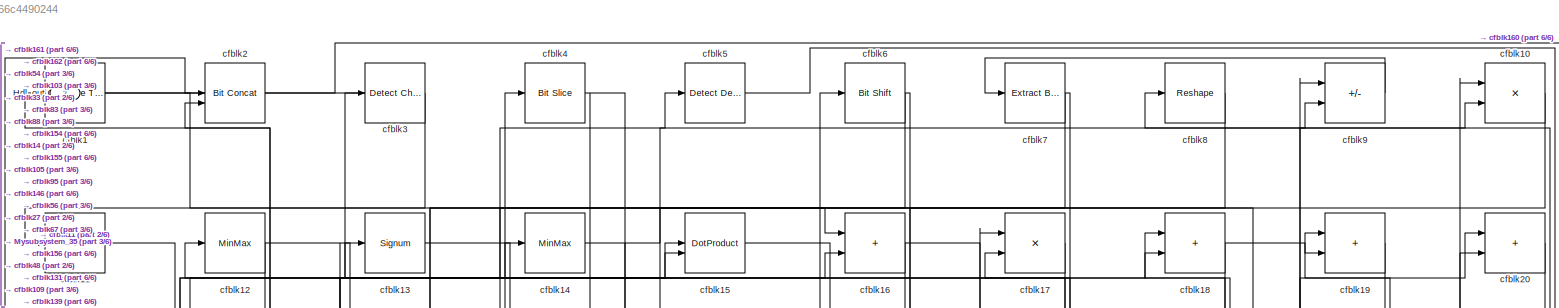
[diagram: root canvas - part 1/6, full width, top band]
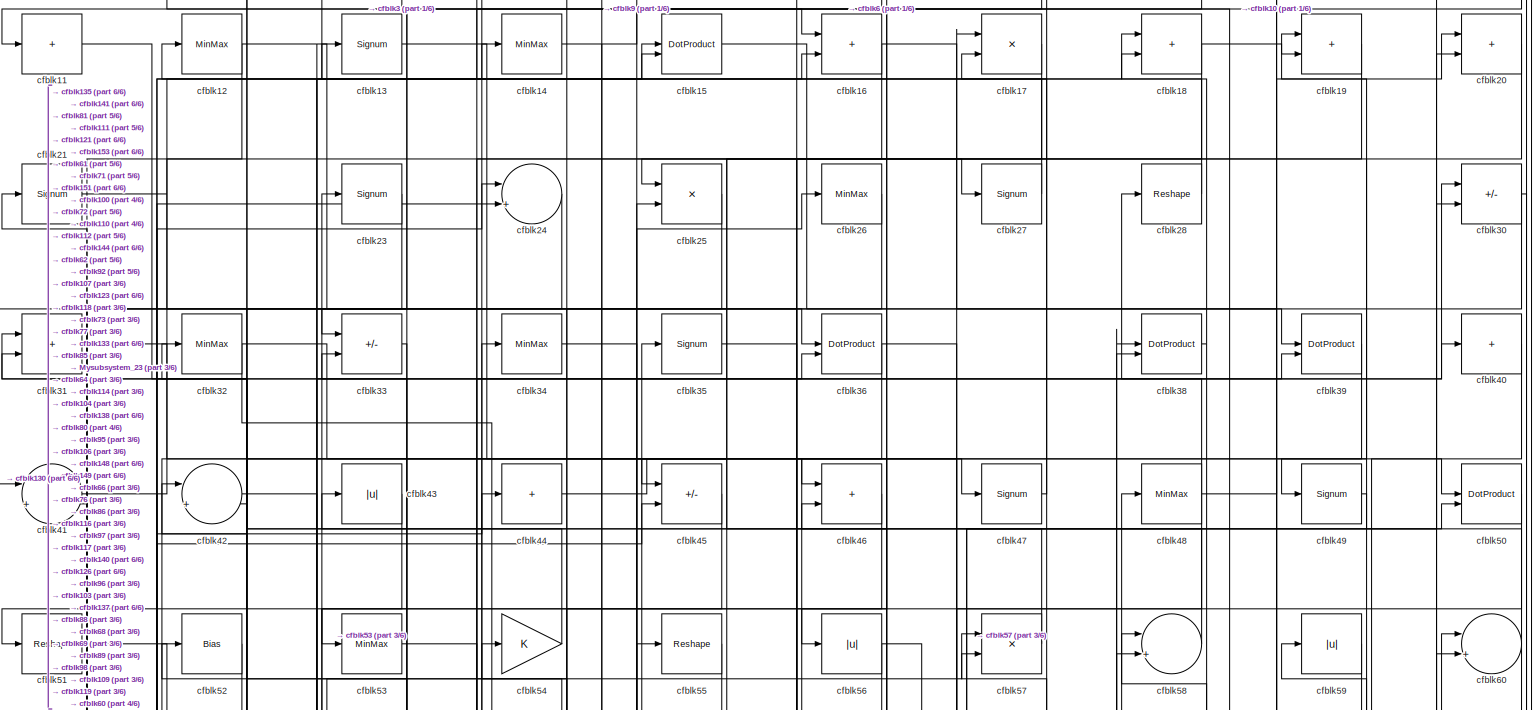
[diagram: root canvas - part 2/6, full width, top band]
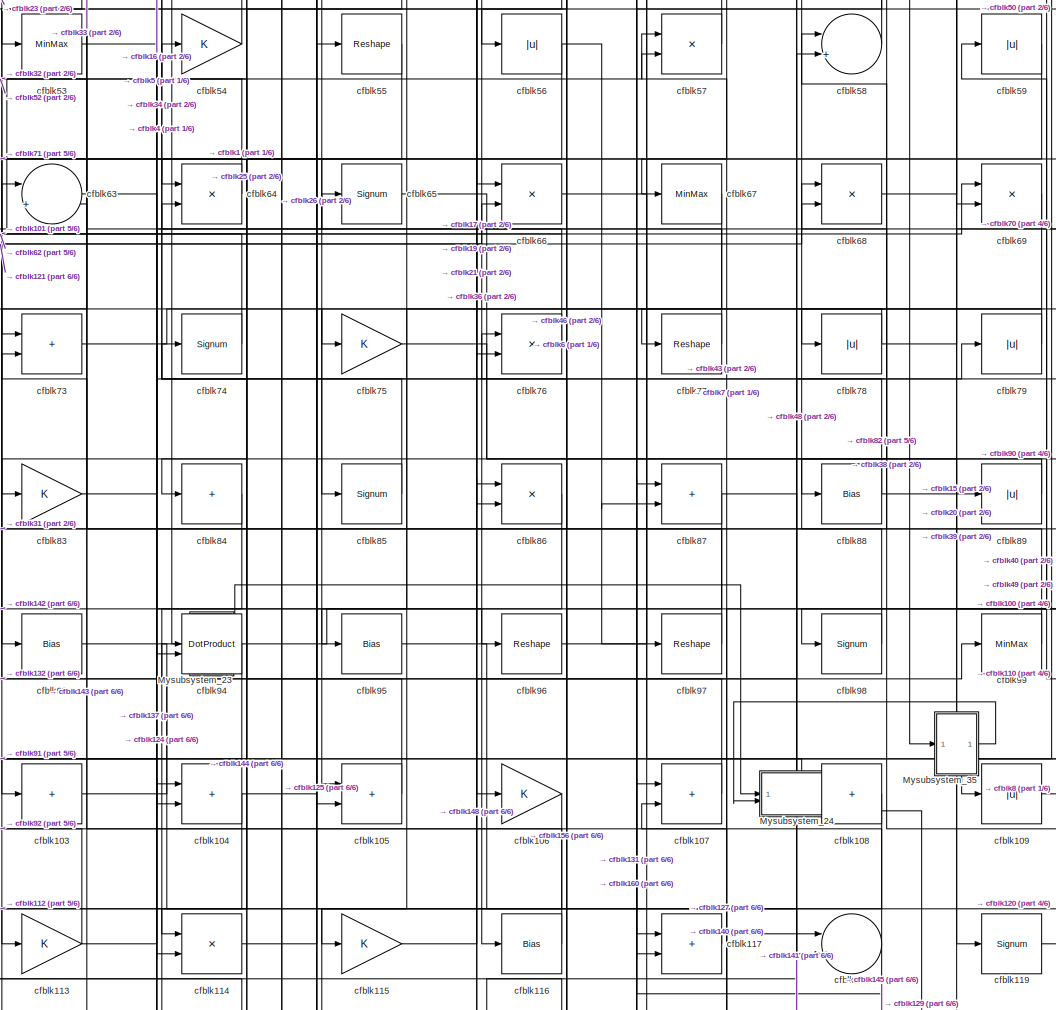
[diagram: root canvas - part 3/6, central region]
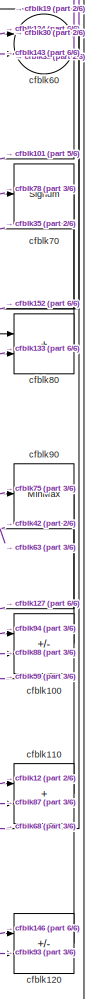
[diagram: root canvas - part 4/6, middle right region]
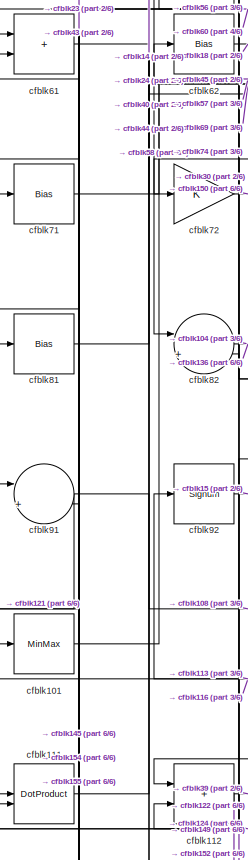
[diagram: root canvas - part 5/6, middle left region]
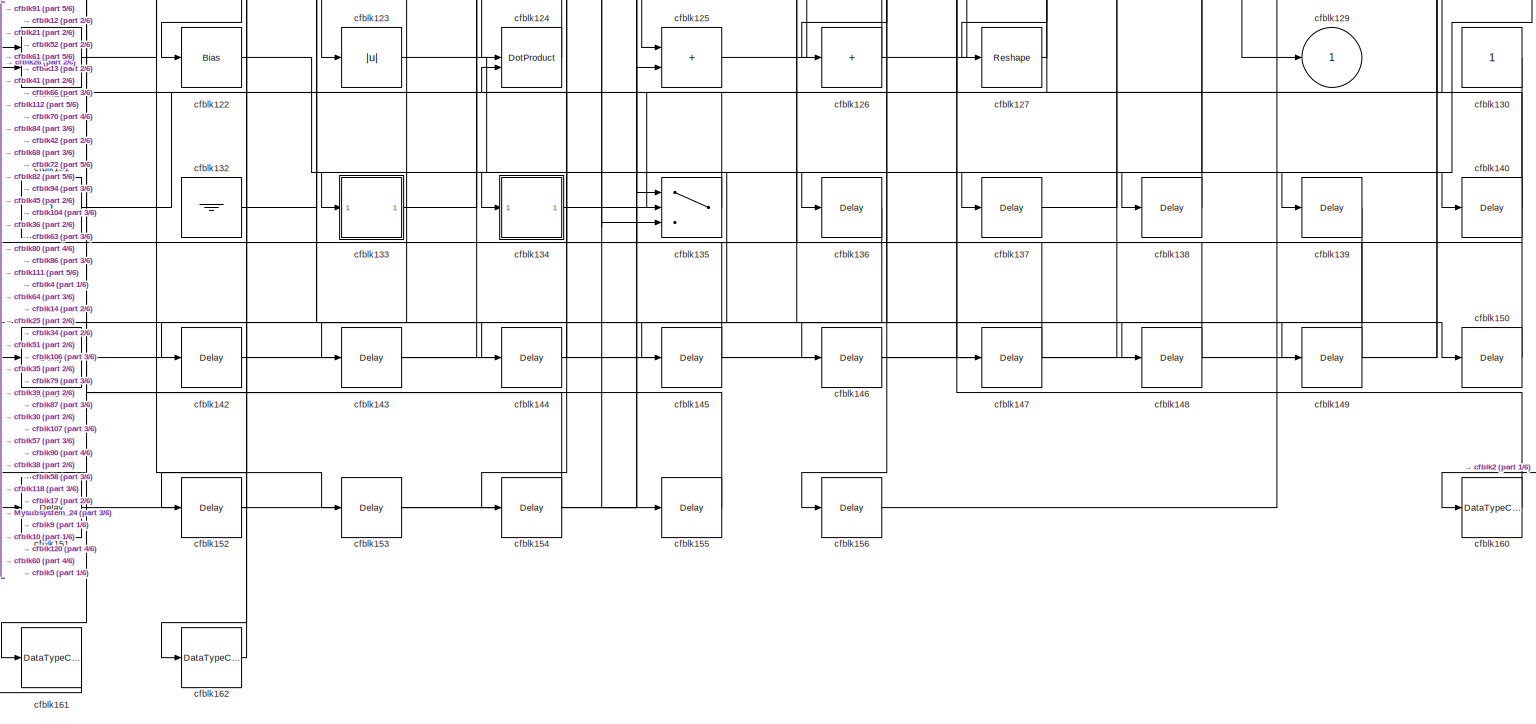
[diagram: root canvas - part 6/6, full width, bottom band]
MODEL slx_3866c4490244
KIND model
CONFIG AbsTol = auto
CONFIG EnableMultiTasking = off
CONFIG FixedStep = auto
CONFIG MaxStep = auto
CONFIG MinStep = auto
CONFIG RelTol = 1e-3
CONFIG SampleTimeConstraint = Unconstrained
CONFIG SolverName = VariableStepAuto
CONFIG StartTime = 0.0
CONFIG StopTime = 10.0
BLOCK [Outport] Hdl_out
  OutDataTypeStr = uint8
  Port = 2
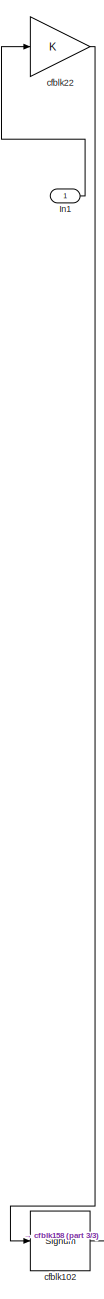
[diagram: Mysubsystem_23 - part 1/3, top left region]
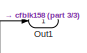
[diagram: Mysubsystem_23 - part 2/3, top right region]
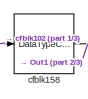
[diagram: Mysubsystem_23 - part 3/3, bottom right region]
BLOCK [SubSystem] Mysubsystem_23
  RTWFcnName = Mysubsystem_23
  RTWFcnNameOpts = User specified
  RTWFileNameOpts = Use function name
  RTWSystemCode = Reusable function
  TreatAsAtomicUnit = on
BLOCK [Inport] Mysubsystem_23/In1
BLOCK [Outport] Mysubsystem_23/Out1
BLOCK [Signum] Mysubsystem_23/cfblk102
BLOCK [DataTypeConversion] Mysubsystem_23/cfblk158
  OutDataTypeStr = uint8
  RndMeth = Floor
  SaturateOnIntegerOverflow = off
BLOCK [Gain] Mysubsystem_23/cfblk22
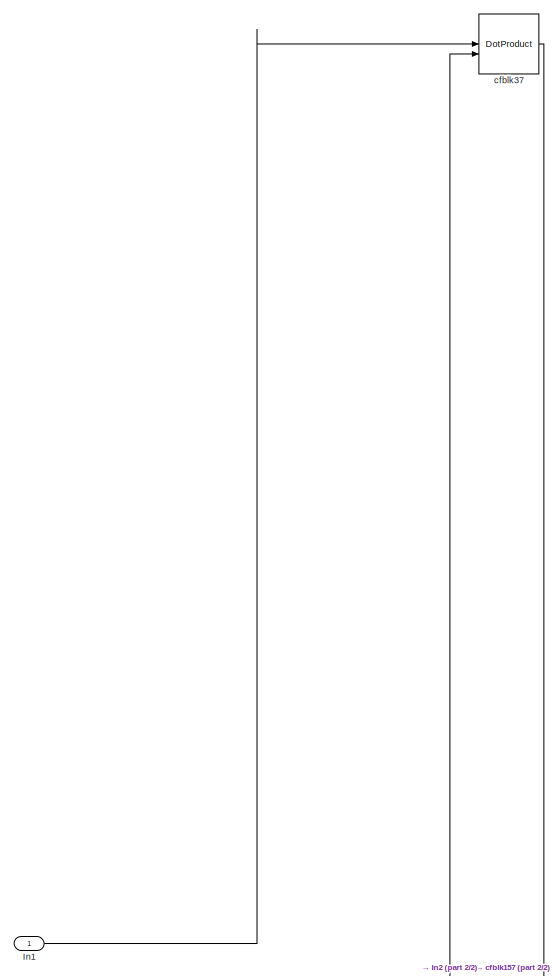
[diagram: Mysubsystem_24 - part 1/2, top left region]
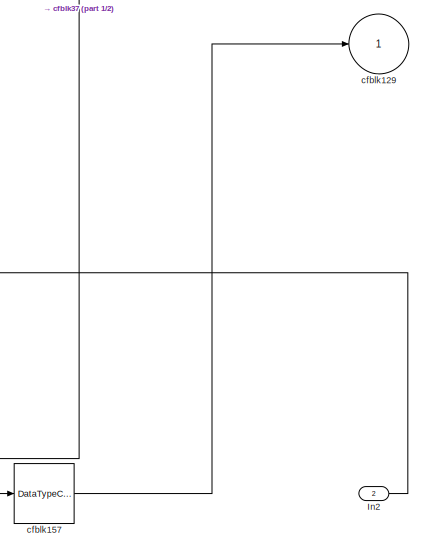
[diagram: Mysubsystem_24 - part 2/2, bottom right region]
BLOCK [SubSystem] Mysubsystem_24
  RTWFcnName = Mysubsystem_24
  RTWFcnNameOpts = User specified
  RTWFileNameOpts = Use function name
  RTWSystemCode = Reusable function
  TreatAsAtomicUnit = on
BLOCK [Inport] Mysubsystem_24/In1
BLOCK [Inport] Mysubsystem_24/In2
  Port = 2
BLOCK [Outport] Mysubsystem_24/cfblk129
  VectorParamsAs1DForOutWhenUnconnected = off
BLOCK [DataTypeConversion] Mysubsystem_24/cfblk157
  OutDataTypeStr = uint8
  RndMeth = Floor
  SaturateOnIntegerOverflow = off
BLOCK [DotProduct] Mysubsystem_24/cfblk37
  OutDataTypeStr = Inherit: Inherit via internal rule
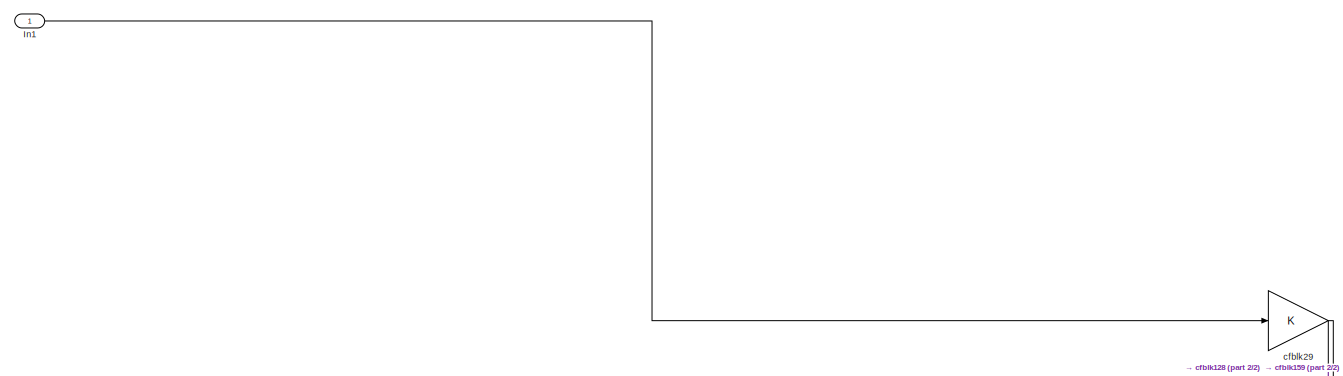
[diagram: Mysubsystem_35 - part 1/2, full width, top band]
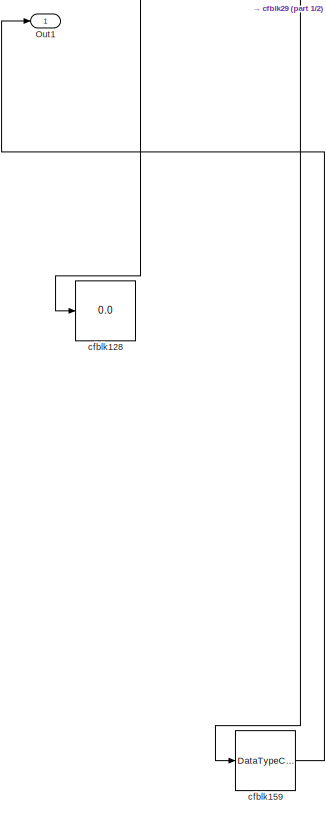
[diagram: Mysubsystem_35 - part 2/2, bottom right region]
BLOCK [SubSystem] Mysubsystem_35
  RTWFcnName = Mysubsystem_35
  RTWFcnNameOpts = User specified
  RTWFileNameOpts = Use function name
  RTWSystemCode = Reusable function
  TreatAsAtomicUnit = on
BLOCK [Inport] Mysubsystem_35/In1
BLOCK [Outport] Mysubsystem_35/Out1
BLOCK [Display] Mysubsystem_35/cfblk128
  Decimation = 1
BLOCK [DataTypeConversion] Mysubsystem_35/cfblk159
  OutDataTypeStr = uint8
  RndMeth = Floor
  SaturateOnIntegerOverflow = off
BLOCK [Gain] Mysubsystem_35/cfblk29
BLOCK [Reference] cfblk1  REF=hdlsllib/Logic and Bit
Operations/Compare
To Zero
  SourceBlock = hdlsllib/Logic and Bit\nOperations/Compare\nTo Zero
  SourceType = Compare To Zero
BLOCK [Product] cfblk10
  Inputs = */
  OutDataTypeStr = uint8
  RndMeth = Zero
  SaturateOnIntegerOverflow = on
BLOCK [Sum] cfblk100
  IconShape = rectangular
  Inputs = +-
  OutDataTypeStr = uint8
BLOCK [MinMax] cfblk101
  OutDataTypeStr = uint8
BLOCK [Sum] cfblk103
  IconShape = rectangular
  Inputs = +
  OutDataTypeStr = uint8
BLOCK [Sum] cfblk104
  IconShape = rectangular
  OutDataTypeStr = uint8
BLOCK [Sum] cfblk105
  IconShape = rectangular
  OutDataTypeStr = uint8
BLOCK [Gain] cfblk106
  OutDataTypeStr = uint8
BLOCK [Sum] cfblk107
  IconShape = rectangular
  OutDataTypeStr = uint8
BLOCK [Sum] cfblk108
  IconShape = rectangular
  OutDataTypeStr = uint8
BLOCK [Abs] cfblk109
  OutDataTypeStr = uint8
  SaturateOnIntegerOverflow = off
BLOCK [Sum] cfblk11
  IconShape = rectangular
  Inputs = +
  OutDataTypeStr = uint8
BLOCK [Sum] cfblk110
  IconShape = rectangular
  OutDataTypeStr = uint8
BLOCK [DotProduct] cfblk111
  OutDataTypeStr = uint8
BLOCK [Sum] cfblk112
  IconShape = rectangular
  OutDataTypeStr = uint8
BLOCK [Gain] cfblk113
  OutDataTypeStr = uint8
BLOCK [Product] cfblk114
  Inputs = */
  OutDataTypeStr = uint8
  RndMeth = Zero
  SaturateOnIntegerOverflow = on
BLOCK [Gain] cfblk115
  OutDataTypeStr = uint8
BLOCK [Bias] cfblk116
  Bias = 0.0
  SaturateOnIntegerOverflow = off
BLOCK [Sum] cfblk117
  IconShape = rectangular
  OutDataTypeStr = uint8
BLOCK [Sum] cfblk118
  Inputs = |++
  OutDataTypeStr = uint8
BLOCK [Signum] cfblk119
BLOCK [MinMax] cfblk12
  OutDataTypeStr = uint8
BLOCK [Sum] cfblk120
  IconShape = rectangular
  Inputs = +-
  OutDataTypeStr = uint8
BLOCK [Product] cfblk121
  Inputs = */
  OutDataTypeStr = uint8
  RndMeth = Zero
  SaturateOnIntegerOverflow = on
BLOCK [Bias] cfblk122
  Bias = 0.0
  SaturateOnIntegerOverflow = off
BLOCK [Abs] cfblk123
  OutDataTypeStr = uint8
  SaturateOnIntegerOverflow = off
BLOCK [DotProduct] cfblk124
  OutDataTypeStr = uint8
BLOCK [Sum] cfblk125
  IconShape = rectangular
  OutDataTypeStr = uint8
BLOCK [Sum] cfblk126
  IconShape = rectangular
  Inputs = +
  OutDataTypeStr = uint8
BLOCK [Reshape] cfblk127
BLOCK [Outport] cfblk129
  OutDataTypeStr = uint8
  VectorParamsAs1DForOutWhenUnconnected = off
BLOCK [Signum] cfblk13
BLOCK [Constant] cfblk130
  OutDataTypeStr = uint8
  SampleTime = -1
BLOCK [Constant] cfblk131
  OutDataTypeStr = uint8
  SampleTime = -1
BLOCK [Ground] cfblk132
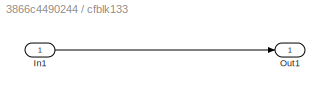
BLOCK [SubSystem] cfblk133
  LibrarySourceBlock = hdlsllib/Ports &\nSubsystems/Subsystem
BLOCK [Inport] cfblk133/In1
BLOCK [Outport] cfblk133/Out1
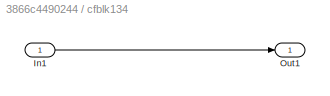
BLOCK [SubSystem] cfblk134
  LibrarySourceBlock = hdlsllib/Ports &\nSubsystems/Subsystem
BLOCK [Inport] cfblk134/In1
BLOCK [Outport] cfblk134/Out1
BLOCK [Switch] cfblk135
  InputSameDT = off
  OutDataTypeStr = uint8
  SaturateOnIntegerOverflow = off
BLOCK [Delay] cfblk136
  InputPortMap = u0
  SampleTime = 1
BLOCK [Delay] cfblk137
  InputPortMap = u0
  SampleTime = 1
BLOCK [Delay] cfblk138
  InputPortMap = u0
  SampleTime = 1
BLOCK [Delay] cfblk139
  InputPortMap = u0
  SampleTime = 1
BLOCK [MinMax] cfblk14
  OutDataTypeStr = uint8
BLOCK [Delay] cfblk140
  InputPortMap = u0
  SampleTime = 1
BLOCK [Delay] cfblk141
  InputPortMap = u0
  SampleTime = 1
BLOCK [Delay] cfblk142
  InputPortMap = u0
  SampleTime = 1
BLOCK [Delay] cfblk143
  InputPortMap = u0
  SampleTime = 1
BLOCK [Delay] cfblk144
  InputPortMap = u0
  SampleTime = 1
BLOCK [Delay] cfblk145
  InputPortMap = u0
  SampleTime = 1
BLOCK [Delay] cfblk146
  InputPortMap = u0
  SampleTime = 1
BLOCK [Delay] cfblk147
  InputPortMap = u0
  SampleTime = 1
BLOCK [Delay] cfblk148
  InputPortMap = u0
  SampleTime = 1
BLOCK [Delay] cfblk149
  InputPortMap = u0
  SampleTime = 1
BLOCK [DotProduct] cfblk15
  OutDataTypeStr = uint8
BLOCK [Delay] cfblk150
  InputPortMap = u0
  SampleTime = 1
BLOCK [Delay] cfblk151
  InputPortMap = u0
  SampleTime = 1
BLOCK [Delay] cfblk152
  InputPortMap = u0
  SampleTime = 1
BLOCK [Delay] cfblk153
  InputPortMap = u0
  SampleTime = 1
BLOCK [Delay] cfblk154
  InputPortMap = u0
  SampleTime = 1
BLOCK [Delay] cfblk155
  InputPortMap = u0
  SampleTime = 1
BLOCK [Delay] cfblk156
  InputPortMap = u0
  SampleTime = 1
BLOCK [Sum] cfblk16
  IconShape = rectangular
  OutDataTypeStr = uint8
BLOCK [DataTypeConversion] cfblk160
  OutDataTypeStr = uint8
  RndMeth = Floor
  SaturateOnIntegerOverflow = off
BLOCK [DataTypeConversion] cfblk161
  OutDataTypeStr = uint8
  RndMeth = Floor
  SaturateOnIntegerOverflow = off
BLOCK [DataTypeConversion] cfblk162
  OutDataTypeStr = uint8
  RndMeth = Floor
  SaturateOnIntegerOverflow = off
BLOCK [Product] cfblk17
  Inputs = */
  OutDataTypeStr = uint8
  RndMeth = Zero
  SaturateOnIntegerOverflow = on
BLOCK [Sum] cfblk18
  IconShape = rectangular
  OutDataTypeStr = uint8
BLOCK [Sum] cfblk19
  IconShape = rectangular
  OutDataTypeStr = uint8
BLOCK [Reference] cfblk2  REF=hdlsllib/Logic and Bit
Operations/Bit Concat
  SourceBlock = hdlsllib/Logic and Bit\nOperations/Bit Concat
  SourceType = Bit Concat
BLOCK [Sum] cfblk20
  IconShape = rectangular
  OutDataTypeStr = uint8
BLOCK [Signum] cfblk21
BLOCK [Signum] cfblk23
BLOCK [Sum] cfblk24
  Inputs = |++
  OutDataTypeStr = uint8
BLOCK [Product] cfblk25
  Inputs = */
  OutDataTypeStr = uint8
  RndMeth = Zero
  SaturateOnIntegerOverflow = on
BLOCK [MinMax] cfblk26
  OutDataTypeStr = uint8
BLOCK [Signum] cfblk27
BLOCK [Reshape] cfblk28
BLOCK [Reference] cfblk3  REF=simulink/Logic and Bit
Operations/Detect
Change
  LibrarySourceBlock = hdlsllib/Logic and Bit\nOperations/Detect\nChange
  SourceBlock = simulink/Logic and Bit\nOperations/Detect\nChange
  SourceType = Detect Change
BLOCK [Sum] cfblk30
  IconShape = rectangular
  Inputs = +-
  OutDataTypeStr = uint8
BLOCK [Sum] cfblk31
  IconShape = rectangular
  OutDataTypeStr = uint8
BLOCK [MinMax] cfblk32
  OutDataTypeStr = uint8
BLOCK [Sum] cfblk33
  IconShape = rectangular
  Inputs = +-
  OutDataTypeStr = uint8
BLOCK [MinMax] cfblk34
  OutDataTypeStr = uint8
BLOCK [Signum] cfblk35
BLOCK [DotProduct] cfblk36
  OutDataTypeStr = uint8
BLOCK [DotProduct] cfblk38
  OutDataTypeStr = uint8
BLOCK [DotProduct] cfblk39
  OutDataTypeStr = uint8
BLOCK [Reference] cfblk4  REF=hdlsllib/Logic and Bit
Operations/Bit Slice
  SourceBlock = hdlsllib/Logic and Bit\nOperations/Bit Slice
  SourceType = Bit Slice
BLOCK [Sum] cfblk40
  IconShape = rectangular
  Inputs = +
  OutDataTypeStr = uint8
BLOCK [Sum] cfblk41
  Inputs = |++
  OutDataTypeStr = uint8
BLOCK [Sum] cfblk42
  Inputs = |++
  OutDataTypeStr = uint8
BLOCK [Abs] cfblk43
  OutDataTypeStr = uint8
  SaturateOnIntegerOverflow = off
BLOCK [Sum] cfblk44
  IconShape = rectangular
  Inputs = +
  OutDataTypeStr = uint8
BLOCK [Sum] cfblk45
  IconShape = rectangular
  Inputs = +-
  OutDataTypeStr = uint8
BLOCK [Sum] cfblk46
  IconShape = rectangular
  OutDataTypeStr = uint8
BLOCK [Signum] cfblk47
BLOCK [MinMax] cfblk48
  OutDataTypeStr = uint8
BLOCK [Signum] cfblk49
BLOCK [Reference] cfblk5  REF=simulink/Logic and Bit
Operations/Detect
Decrease
  LibrarySourceBlock = hdlsllib/Logic and Bit\nOperations/Detect\nDecrease
  SourceBlock = simulink/Logic and Bit\nOperations/Detect\nDecrease
  SourceType = Detect Decrease
BLOCK [DotProduct] cfblk50
  OutDataTypeStr = uint8
BLOCK [Reshape] cfblk51
BLOCK [Bias] cfblk52
  Bias = 0.0
  SaturateOnIntegerOverflow = off
BLOCK [MinMax] cfblk53
  OutDataTypeStr = uint8
BLOCK [Gain] cfblk54
  OutDataTypeStr = uint8
BLOCK [Reshape] cfblk55
BLOCK [Abs] cfblk56
  OutDataTypeStr = uint8
  SaturateOnIntegerOverflow = off
BLOCK [Product] cfblk57
  Inputs = */
  OutDataTypeStr = uint8
  RndMeth = Zero
  SaturateOnIntegerOverflow = on
BLOCK [Sum] cfblk58
  Inputs = |++
  OutDataTypeStr = uint8
BLOCK [Abs] cfblk59
  OutDataTypeStr = uint8
  SaturateOnIntegerOverflow = off
BLOCK [Reference] cfblk6  REF=hdlsllib/Logic and Bit
Operations/Bit Shift
  SourceBlock = hdlsllib/Logic and Bit\nOperations/Bit Shift
  SourceType = Bit Shift
BLOCK [Sum] cfblk60
  Inputs = |++
  OutDataTypeStr = uint8
BLOCK [Sum] cfblk61
  IconShape = rectangular
  OutDataTypeStr = uint8
BLOCK [Bias] cfblk62
  Bias = 0.0
  SaturateOnIntegerOverflow = off
BLOCK [Sum] cfblk63
  Inputs = |++
  OutDataTypeStr = uint8
BLOCK [Product] cfblk64
  Inputs = */
  OutDataTypeStr = uint8
  RndMeth = Zero
  SaturateOnIntegerOverflow = on
BLOCK [Signum] cfblk65
BLOCK [Product] cfblk66
  Inputs = */
  OutDataTypeStr = uint8
  RndMeth = Zero
  SaturateOnIntegerOverflow = on
BLOCK [MinMax] cfblk67
  OutDataTypeStr = uint8
BLOCK [Product] cfblk68
  Inputs = */
  OutDataTypeStr = uint8
  RndMeth = Zero
  SaturateOnIntegerOverflow = on
BLOCK [Product] cfblk69
  Inputs = */
  OutDataTypeStr = uint8
  RndMeth = Zero
  SaturateOnIntegerOverflow = on
BLOCK [Reference] cfblk7  REF=simulink/Logic and Bit
Operations/Extract Bits
  LibrarySourceBlock = hdlsllib/Logic and Bit\nOperations/Extract Bits
  SourceBlock = simulink/Logic and Bit\nOperations/Extract Bits
  SourceType = Extract Bits
BLOCK [Signum] cfblk70
BLOCK [Bias] cfblk71
  Bias = 0.0
  SaturateOnIntegerOverflow = off
BLOCK [Gain] cfblk72
  OutDataTypeStr = uint8
BLOCK [Sum] cfblk73
  IconShape = rectangular
  OutDataTypeStr = uint8
BLOCK [Signum] cfblk74
BLOCK [Gain] cfblk75
  OutDataTypeStr = uint8
BLOCK [Product] cfblk76
  Inputs = */
  OutDataTypeStr = uint8
  RndMeth = Zero
  SaturateOnIntegerOverflow = on
BLOCK [Reshape] cfblk77
BLOCK [Abs] cfblk78
  OutDataTypeStr = uint8
  SaturateOnIntegerOverflow = off
BLOCK [Abs] cfblk79
  OutDataTypeStr = uint8
  SaturateOnIntegerOverflow = off
BLOCK [Reshape] cfblk8
BLOCK [Sum] cfblk80
  IconShape = rectangular
  OutDataTypeStr = uint8
BLOCK [Bias] cfblk81
  Bias = 0.0
  SaturateOnIntegerOverflow = off
BLOCK [Sum] cfblk82
  Inputs = |++
  OutDataTypeStr = uint8
BLOCK [Gain] cfblk83
  OutDataTypeStr = uint8
BLOCK [Sum] cfblk84
  IconShape = rectangular
  Inputs = +
  OutDataTypeStr = uint8
BLOCK [Signum] cfblk85
BLOCK [Product] cfblk86
  Inputs = */
  OutDataTypeStr = uint8
  RndMeth = Zero
  SaturateOnIntegerOverflow = on
BLOCK [Sum] cfblk87
  IconShape = rectangular
  OutDataTypeStr = uint8
BLOCK [Bias] cfblk88
  Bias = 0.0
  SaturateOnIntegerOverflow = off
BLOCK [Abs] cfblk89
  OutDataTypeStr = uint8
  SaturateOnIntegerOverflow = off
BLOCK [Sum] cfblk9
  IconShape = rectangular
  Inputs = +-
  OutDataTypeStr = uint8
BLOCK [MinMax] cfblk90
  OutDataTypeStr = uint8
BLOCK [Sum] cfblk91
  Inputs = |++
  OutDataTypeStr = uint8
BLOCK [Signum] cfblk92
BLOCK [Bias] cfblk93
  Bias = 0.0
  SaturateOnIntegerOverflow = off
BLOCK [DotProduct] cfblk94
  OutDataTypeStr = uint8
BLOCK [Bias] cfblk95
  Bias = 0.0
  SaturateOnIntegerOverflow = off
BLOCK [Reshape] cfblk96
BLOCK [Reshape] cfblk97
BLOCK [Signum] cfblk98
BLOCK [MinMax] cfblk99
  OutDataTypeStr = uint8
LINE Mysubsystem_23/In1:1 -> Mysubsystem_23/cfblk22:1
LINE Mysubsystem_23/cfblk102:1 -> Mysubsystem_23/cfblk158:1
LINE Mysubsystem_23/cfblk158:1 -> Mysubsystem_23/Out1:1
LINE Mysubsystem_23/cfblk22:1 -> Mysubsystem_23/cfblk102:1
LINE Mysubsystem_23:1 -> Mysubsystem_24:1
LINE Mysubsystem_24/In1:1 -> Mysubsystem_24/cfblk37:1
LINE Mysubsystem_24/In2:1 -> Mysubsystem_24/cfblk37:2
LINE Mysubsystem_24/cfblk157:1 -> Mysubsystem_24/cfblk129:1
LINE Mysubsystem_24/cfblk37:1 -> Mysubsystem_24/cfblk157:1
LINE Mysubsystem_24:1 -> cfblk129:1
LINE Mysubsystem_35/In1:1 -> Mysubsystem_35/cfblk29:1
LINE Mysubsystem_35/cfblk159:1 -> Mysubsystem_35/Out1:1
NET Mysubsystem_35/cfblk29:1 -> Mysubsystem_35/cfblk128:1, Mysubsystem_35/cfblk159:1
LINE Mysubsystem_35:1 -> Mysubsystem_24:2
NET cfblk100:1 -> cfblk42:1, cfblk63:2
LINE cfblk101:1 -> cfblk69:1
LINE cfblk103:1 -> cfblk38:2
NET cfblk104:1 -> cfblk113:1, cfblk26:1
LINE cfblk105:1 -> cfblk74:1
LINE cfblk106:1 -> cfblk125:1
LINE cfblk107:1 -> cfblk23:1
LINE cfblk108:1 -> cfblk112:1
LINE cfblk109:1 -> cfblk8:1
LINE cfblk10:1 -> cfblk146:1
LINE cfblk110:1 -> cfblk59:1
NET cfblk111:1 -> cfblk24:1, cfblk40:1
NET cfblk112:1 -> cfblk122:1, cfblk39:2
NET cfblk113:1 -> cfblk65:1, cfblk91:1
LINE cfblk114:1 -> cfblk55:1
LINE cfblk115:1 -> cfblk99:1
LINE cfblk116:1 -> cfblk92:1
LINE cfblk117:1 -> cfblk118:1
NET cfblk118:1 -> cfblk145:1, cfblk33:2, cfblk76:1
LINE cfblk119:1 -> cfblk20:2
LINE cfblk11:1 -> cfblk30:1
LINE cfblk120:1 -> cfblk68:1
NET cfblk121:1 -> cfblk13:1, cfblk66:2
LINE cfblk122:1 -> cfblk134:1
LINE cfblk123:1 -> cfblk147:1
LINE cfblk124:1 -> cfblk111:1
LINE cfblk125:1 -> cfblk79:1
NET cfblk126:1 -> cfblk30:2, cfblk41:2
LINE cfblk127:1 -> cfblk57:2
NET cfblk12:1 -> cfblk110:1, cfblk141:1, cfblk36:1
LINE cfblk130:1 -> cfblk41:1
NET cfblk131:1 -> cfblk10:1, cfblk87:1
NET cfblk132:1 -> cfblk68:2, cfblk94:1
LINE cfblk133/In1:1 -> cfblk133/Out1:1
NET cfblk133:1 -> cfblk36:2, cfblk80:2
LINE cfblk134/In1:1 -> cfblk134/Out1:1
LINE cfblk134:1 -> cfblk60:1
NET cfblk135:1 -> cfblk133:1, cfblk21:1
LINE cfblk136:1 -> cfblk162:1
LINE cfblk137:1 -> cfblk38:1
LINE cfblk138:1 -> cfblk17:1
LINE cfblk139:1 -> cfblk161:1
NET cfblk13:1 -> cfblk16:1, cfblk16:2, cfblk47:1
LINE cfblk140:1 -> cfblk107:2
LINE cfblk141:1 -> cfblk58:2
LINE cfblk142:1 -> cfblk104:1
LINE cfblk143:1 -> cfblk60:2
LINE cfblk144:1 -> cfblk64:2
LINE cfblk145:1 -> cfblk61:2
LINE cfblk146:1 -> cfblk120:1
LINE cfblk147:1 -> cfblk124:2
LINE cfblk148:1 -> cfblk86:1
LINE cfblk149:1 -> cfblk112:2
NET cfblk14:1 -> cfblk135:3, cfblk9:2
LINE cfblk150:1 -> cfblk135:2
LINE cfblk151:1 -> cfblk125:2
LINE cfblk152:1 -> cfblk82:2
LINE cfblk153:1 -> cfblk25:2
LINE cfblk154:1 -> cfblk91:2
LINE cfblk155:1 -> cfblk111:2
LINE cfblk156:1 -> cfblk9:1
LINE cfblk15:1 -> cfblk89:1
LINE cfblk160:1 -> cfblk107:1
LINE cfblk161:1 -> cfblk2:1
LINE cfblk162:1 -> cfblk2:2
NET cfblk16:1 -> cfblk114:2, cfblk39:1
NET cfblk17:1 -> cfblk86:2, cfblk95:1
NET cfblk18:1 -> cfblk19:2, cfblk25:1
LINE cfblk19:1 -> cfblk76:2
LINE cfblk1:1 -> Mysubsystem_35:1
NET cfblk20:1 -> cfblk45:1, cfblk49:1
NET cfblk21:1 -> cfblk106:1, cfblk27:1
LINE cfblk23:1 -> cfblk81:1
LINE cfblk24:1 -> cfblk51:1
LINE cfblk25:1 -> cfblk64:1
LINE cfblk26:1 -> cfblk121:2
LINE cfblk27:1 -> cfblk3:1
LINE cfblk28:1 -> cfblk12:1
LINE cfblk2:1 -> cfblk160:1
NET cfblk30:1 -> cfblk72:1, cfblk80:1
LINE cfblk31:1 -> cfblk46:1
NET cfblk32:1 -> Mysubsystem_23:1, cfblk117:1, cfblk66:1
LINE cfblk33:1 -> cfblk53:1
LINE cfblk34:1 -> cfblk138:1
NET cfblk35:1 -> cfblk148:1, cfblk149:1
NET cfblk36:1 -> cfblk116:1, cfblk140:1
NET cfblk38:1 -> cfblk18:2, cfblk88:1
NET cfblk39:1 -> cfblk126:1, cfblk42:2, cfblk69:2
NET cfblk3:1 -> Hdl_out:1, cfblk11:1
LINE cfblk40:1 -> cfblk109:1
NET cfblk41:1 -> cfblk153:1, cfblk15:1
LINE cfblk42:1 -> cfblk144:1
LINE cfblk43:1 -> cfblk61:1
LINE cfblk44:1 -> cfblk50:1
LINE cfblk45:1 -> cfblk123:1
LINE cfblk46:1 -> cfblk73:1
LINE cfblk47:1 -> cfblk17:2
NET cfblk48:1 -> cfblk10:2, cfblk117:2, cfblk28:1
LINE cfblk49:1 -> cfblk98:1
NET cfblk4:1 -> cfblk154:1, cfblk155:1
LINE cfblk50:1 -> cfblk114:1
LINE cfblk51:1 -> cfblk135:1
LINE cfblk52:1 -> cfblk151:1
LINE cfblk53:1 -> cfblk94:2
LINE cfblk54:1 -> cfblk1:1
LINE cfblk55:1 -> cfblk93:1
NET cfblk56:1 -> cfblk105:1, cfblk71:1, cfblk87:2, cfblk97:1
LINE cfblk57:1 -> cfblk43:1
LINE cfblk58:1 -> cfblk82:1
LINE cfblk59:1 -> cfblk84:1
LINE cfblk5:1 -> cfblk139:1
NET cfblk60:1 -> cfblk101:1, cfblk19:1, cfblk31:2
NET cfblk61:1 -> cfblk24:2, cfblk44:1
LINE cfblk62:1 -> cfblk18:1
LINE cfblk63:1 -> cfblk137:1
LINE cfblk64:1 -> cfblk32:1
LINE cfblk65:1 -> cfblk119:1
LINE cfblk66:1 -> cfblk108:1
LINE cfblk67:1 -> cfblk115:1
LINE cfblk68:1 -> cfblk20:1
LINE cfblk69:1 -> cfblk85:1
NET cfblk6:1 -> cfblk33:1, cfblk56:1
LINE cfblk70:1 -> cfblk152:1
NET cfblk71:1 -> cfblk45:2, cfblk57:1
LINE cfblk72:1 -> cfblk150:1
NET cfblk73:1 -> cfblk75:1, cfblk96:1
LINE cfblk74:1 -> cfblk62:1
LINE cfblk75:1 -> cfblk90:1
NET cfblk76:1 -> cfblk54:1, cfblk63:1
LINE cfblk77:1 -> cfblk52:1
NET cfblk78:1 -> cfblk70:1, cfblk77:1
LINE cfblk79:1 -> cfblk78:1
NET cfblk7:1 -> cfblk105:2, cfblk67:1
LINE cfblk80:1 -> cfblk35:1
LINE cfblk81:1 -> cfblk14:1
NET cfblk82:1 -> cfblk104:2, cfblk136:1
LINE cfblk83:1 -> cfblk5:1
LINE cfblk84:1 -> cfblk142:1
LINE cfblk85:1 -> cfblk34:1
LINE cfblk86:1 -> cfblk124:1
NET cfblk87:1 -> cfblk110:2, cfblk156:1
NET cfblk88:1 -> cfblk100:2, cfblk4:1
LINE cfblk89:1 -> cfblk83:1
LINE cfblk8:1 -> cfblk103:1
LINE cfblk90:1 -> cfblk127:1
NET cfblk91:1 -> cfblk108:2, cfblk121:1
LINE cfblk92:1 -> cfblk15:2
LINE cfblk93:1 -> cfblk120:2
NET cfblk94:1 -> cfblk100:1, cfblk143:1
NET cfblk95:1 -> cfblk118:2, cfblk6:1
LINE cfblk96:1 -> cfblk50:2
NET cfblk97:1 -> cfblk31:1, cfblk46:2
LINE cfblk98:1 -> cfblk48:1
NET cfblk99:1 -> cfblk58:1, cfblk73:2
LINE cfblk9:1 -> cfblk7:1
note: NET lines group one-source signal fan-out (src -> all destinations, sorted); 1:1 wires keep LINE
